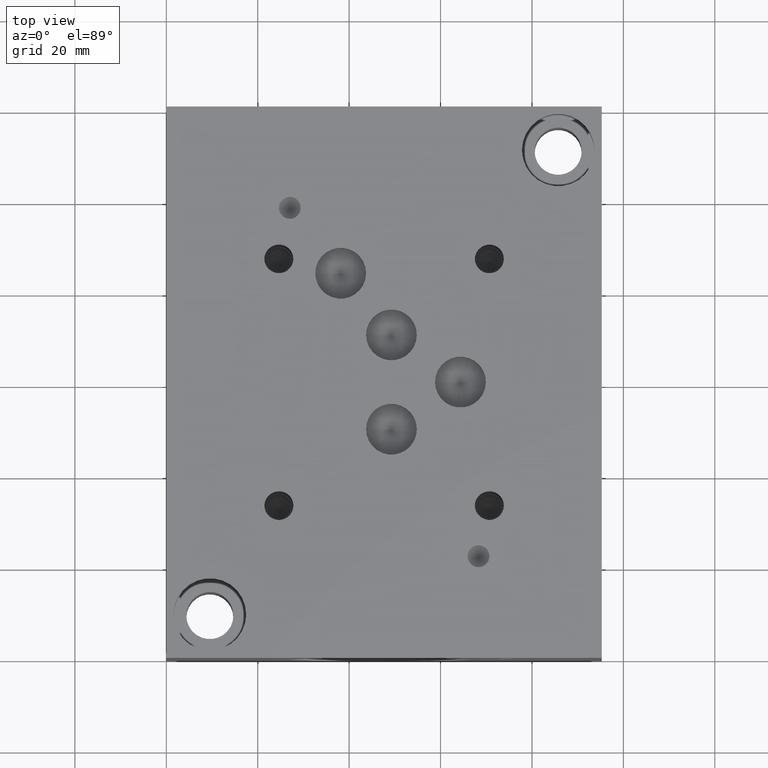
[diagram: clean part render]
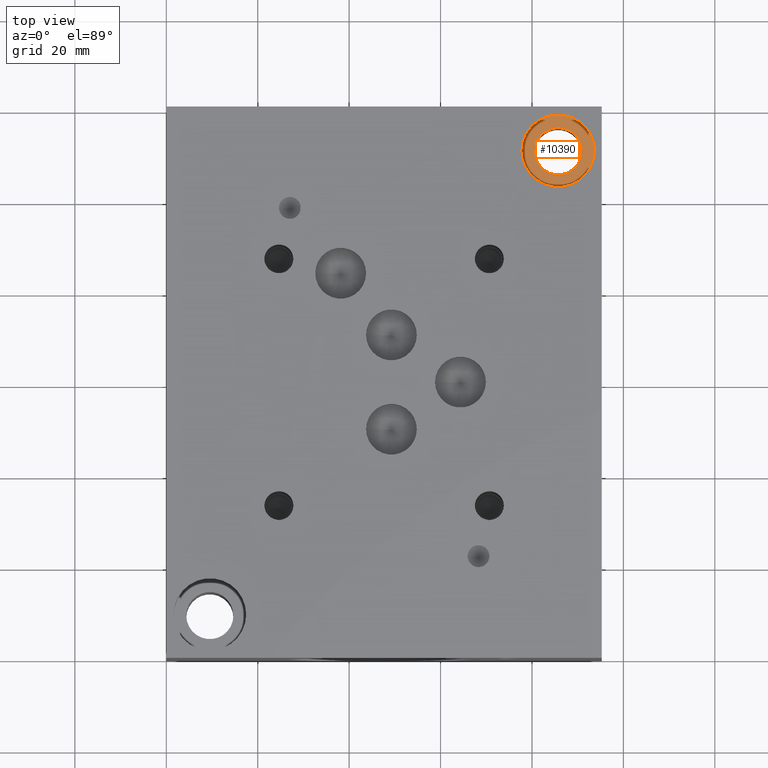
[diagram: same view with one face highlighted and labeled with its STEP entity id]
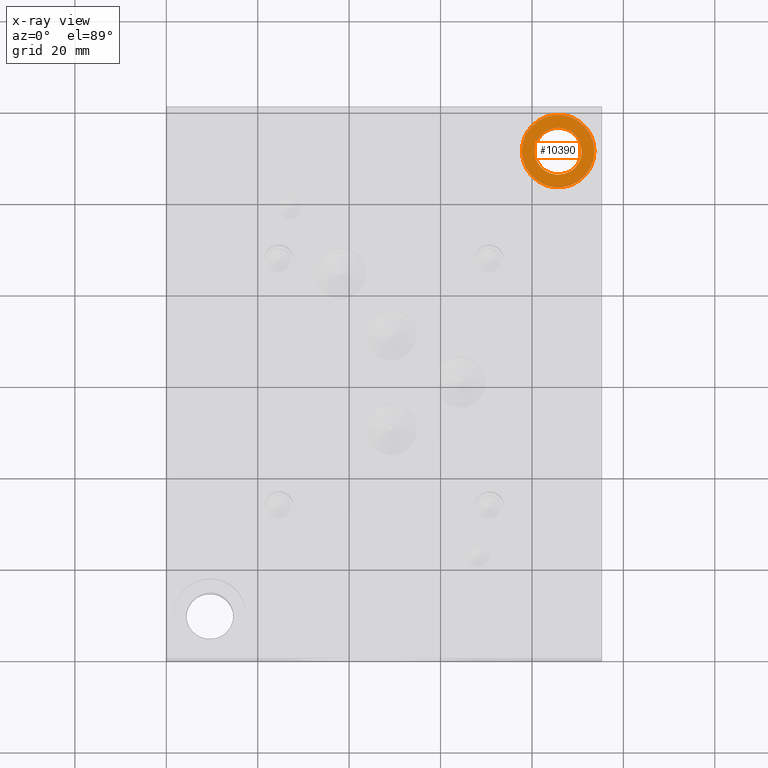
[diagram: x-ray of the same camera — body ghosted, the highlighted face saturated]
A machine part, top view. The second image highlights one B-rep face of the part: STEP entity #10390.
The next image is the same camera in x-ray: the body ghosted, the highlighted face saturated — about 0% of this face is hidden behind the body in this view.
In plain terms, the highlighted planar face has unit normal (0, 0, 1).
Its self-contained STEP definition (entity closure, byte-faithful):
#106=CIRCLE('',#10817,7.9375);
#107=CIRCLE('',#10818,7.9375);
#108=CIRCLE('',#10819,5.1562);
#317=FACE_BOUND('',#1745,.T.);
#1171=FACE_OUTER_BOUND('',#1744,.T.);
#1744=EDGE_LOOP('',(#8672,#8673));
#1745=EDGE_LOOP('',(#8674));
#4694=VERTEX_POINT('',#17391);
#4695=VERTEX_POINT('',#17392);
#4696=VERTEX_POINT('',#17395);
#6074=EDGE_CURVE('',#4694,#4695,#106,.T.);
#6075=EDGE_CURVE('',#4695,#4694,#107,.T.);
#6076=EDGE_CURVE('',#4696,#4696,#108,.T.);
#8672=ORIENTED_EDGE('',*,*,#6074,.T.);
#8673=ORIENTED_EDGE('',*,*,#6075,.T.);
#8674=ORIENTED_EDGE('',*,*,#6076,.F.);
#9521=PLANE('',#10816);
#10390=ADVANCED_FACE('',(#1171,#317),#9521,.T.);
#10816=AXIS2_PLACEMENT_3D('',#17390,#12628,#12629);
#10817=AXIS2_PLACEMENT_3D('',#17393,#12630,#12631);
#10818=AXIS2_PLACEMENT_3D('',#17394,#12632,#12633);
#10819=AXIS2_PLACEMENT_3D('',#17396,#12634,#12635);
#12628=DIRECTION('center_axis',(0.,0.,1.));
#12629=DIRECTION('ref_axis',(1.,0.,0.));
#12630=DIRECTION('center_axis',(0.,0.,1.));
#12631=DIRECTION('ref_axis',(1.,0.,0.));
#12632=DIRECTION('center_axis',(0.,0.,1.));
#12633=DIRECTION('ref_axis',(1.,0.,0.));
#12634=DIRECTION('center_axis',(0.,0.,1.));
#12635=DIRECTION('ref_axis',(1.,0.,0.));
#17390=CARTESIAN_POINT('Origin',(85.725,111.125,30.1752));
#17391=CARTESIAN_POINT('',(93.6625,111.125,30.1752));
#17392=CARTESIAN_POINT('',(77.7875,111.125,30.1752));
#17393=CARTESIAN_POINT('Origin',(85.725,111.125,30.1752));
#17394=CARTESIAN_POINT('Origin',(85.725,111.125,30.1752));
#17395=CARTESIAN_POINT('',(80.5688,111.125,30.1752));
#17396=CARTESIAN_POINT('Origin',(85.725,111.125,30.1752));